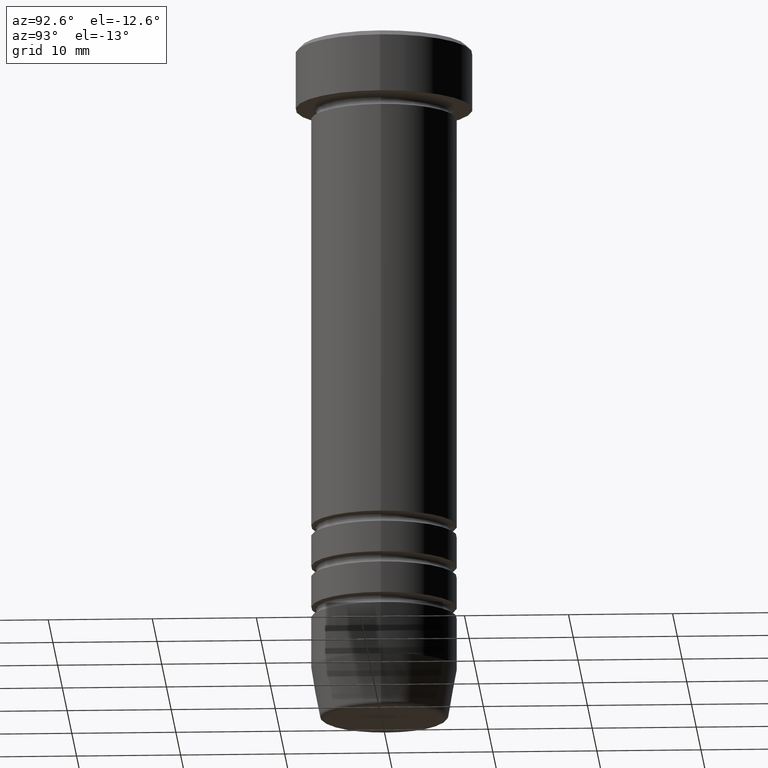
[diagram: clean part render]
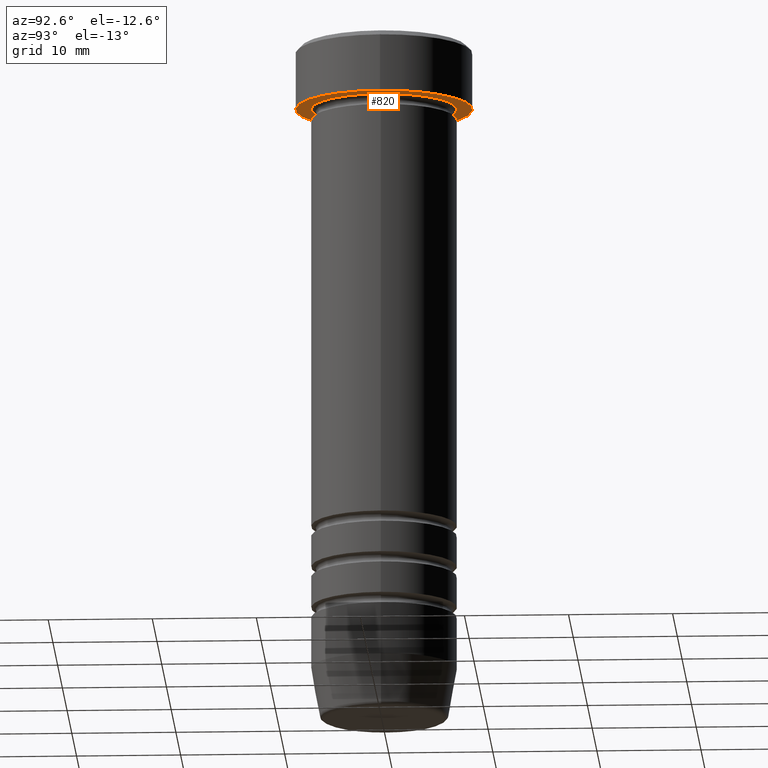
[diagram: same view with one face highlighted and labeled with its STEP entity id]
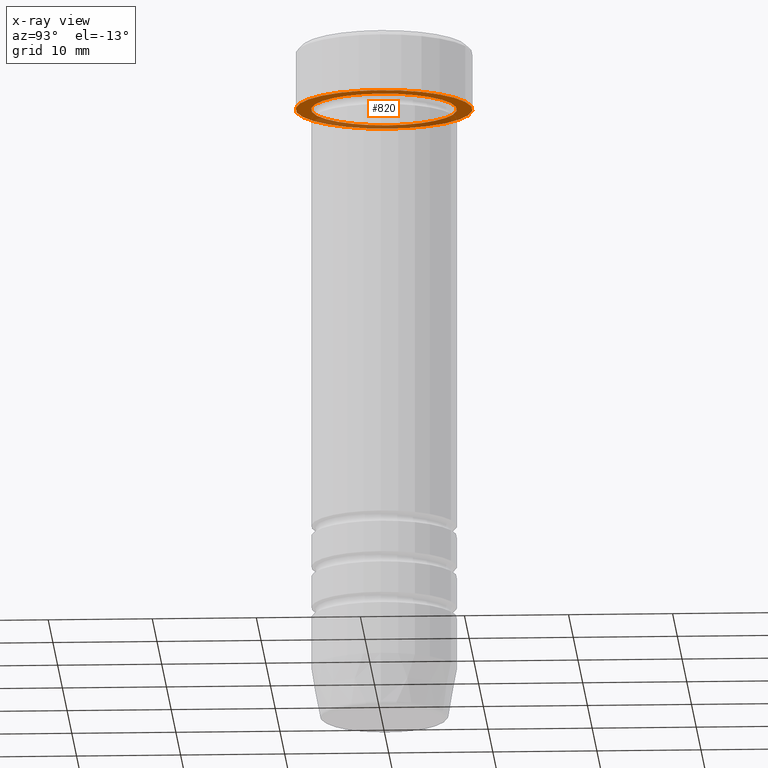
[diagram: x-ray of the same camera — body ghosted, the highlighted face saturated]
A machine part, auxiliary view. The second image highlights one B-rep face of the part: STEP entity #820.
The next image is the same camera in x-ray: the body ghosted, the highlighted face saturated — about 31% of this face is hidden behind the body in this view.
In plain terms, the highlighted planar face has unit normal (0, 0, -1).
Its self-contained STEP definition (entity closure, byte-faithful):
#4 = AXIS2_PLACEMENT_3D ( 'NONE', #617, #550, #245 ) ;
#36 = ORIENTED_EDGE ( 'NONE', *, *, #993, .F. ) ;
#55 = PLANE ( 'NONE',  #517 ) ;
#57 = ORIENTED_EDGE ( 'NONE', *, *, #767, .F. ) ;
#59 = CARTESIAN_POINT ( 'NONE',  ( 0.000000000000000000, 8.500000000000000000, -6.000000000000000000 ) ) ;
#119 = CIRCLE ( 'NONE', #4, 7.000000000000000888 ) ;
#230 = CARTESIAN_POINT ( 'NONE',  ( 0.000000000000000000, 0.000000000000000000, -6.000000000000000000 ) ) ;
#245 = DIRECTION ( 'NONE',  ( -1.000000000000000000, 0.000000000000000000, 0.000000000000000000 ) ) ;
#297 = CARTESIAN_POINT ( 'NONE',  ( 0.000000000000000000, 0.000000000000000000, -6.000000000000000000 ) ) ;
#328 = CIRCLE ( 'NONE', #477, 7.000000000000000888 ) ;
#416 = DIRECTION ( 'NONE',  ( 0.000000000000000000, 0.000000000000000000, -1.000000000000000000 ) ) ;
#435 = CARTESIAN_POINT ( 'NONE',  ( 8.500000000000000000, 0.000000000000000000, -6.000000000000000000 ) ) ;
#442 = AXIS2_PLACEMENT_3D ( 'NONE', #230, #790, #1054 ) ;
#460 = EDGE_LOOP ( 'NONE', ( #57, #36 ) ) ;
#477 = AXIS2_PLACEMENT_3D ( 'NONE', #297, #1086, #482 ) ;
#482 = DIRECTION ( 'NONE',  ( -1.000000000000000000, 0.000000000000000000, 0.000000000000000000 ) ) ;
#514 = CARTESIAN_POINT ( 'NONE',  ( -7.000000000000000888, 0.000000000000000000, -6.000000000000000000 ) ) ;
#517 = AXIS2_PLACEMENT_3D ( 'NONE', #59, #416, #1135 ) ;
#550 = DIRECTION ( 'NONE',  ( -0.000000000000000000, -0.000000000000000000, 1.000000000000000000 ) ) ;
#572 = AXIS2_PLACEMENT_3D ( 'NONE', #733, #900, #1073 ) ;
#611 = EDGE_CURVE ( 'NONE', #762, #768, #119, .T. ) ;
#617 = CARTESIAN_POINT ( 'NONE',  ( 0.000000000000000000, 0.000000000000000000, -6.000000000000000000 ) ) ;
#620 = FACE_BOUND ( 'NONE', #948, .T. ) ;
#673 = ORIENTED_EDGE ( 'NONE', *, *, #699, .T. ) ;
#697 = FACE_OUTER_BOUND ( 'NONE', #460, .T. ) ;
#699 = EDGE_CURVE ( 'NONE', #768, #762, #328, .T. ) ;
#733 = CARTESIAN_POINT ( 'NONE',  ( 0.000000000000000000, 0.000000000000000000, -6.000000000000000000 ) ) ;
#762 = VERTEX_POINT ( 'NONE', #514 ) ;
#767 = EDGE_CURVE ( 'NONE', #780, #1072, #1051, .T. ) ;
#768 = VERTEX_POINT ( 'NONE', #1113 ) ;
#780 = VERTEX_POINT ( 'NONE', #435 ) ;
#790 = DIRECTION ( 'NONE',  ( -0.000000000000000000, -0.000000000000000000, 1.000000000000000000 ) ) ;
#820 = ADVANCED_FACE ( 'NONE', ( #620, #697 ), #55, .T. ) ;
#827 = ORIENTED_EDGE ( 'NONE', *, *, #611, .T. ) ;
#900 = DIRECTION ( 'NONE',  ( -0.000000000000000000, -0.000000000000000000, 1.000000000000000000 ) ) ;
#948 = EDGE_LOOP ( 'NONE', ( #827, #673 ) ) ;
#993 = EDGE_CURVE ( 'NONE', #1072, #780, #1068, .T. ) ;
#1051 = CIRCLE ( 'NONE', #442, 8.500000000000000000 ) ;
#1054 = DIRECTION ( 'NONE',  ( 1.000000000000000000, 0.000000000000000000, 0.000000000000000000 ) ) ;
#1068 = CIRCLE ( 'NONE', #572, 8.500000000000000000 ) ;
#1072 = VERTEX_POINT ( 'NONE', #1083 ) ;
#1073 = DIRECTION ( 'NONE',  ( 1.000000000000000000, 0.000000000000000000, 0.000000000000000000 ) ) ;
#1083 = CARTESIAN_POINT ( 'NONE',  ( -8.500000000000000000, 1.040949779275250140E-15, -6.000000000000000000 ) ) ;
#1086 = DIRECTION ( 'NONE',  ( -0.000000000000000000, -0.000000000000000000, 1.000000000000000000 ) ) ;
#1113 = CARTESIAN_POINT ( 'NONE',  ( 7.000000000000000888, 8.572527594031474176E-16, -6.000000000000000000 ) ) ;
#1135 = DIRECTION ( 'NONE',  ( -1.000000000000000000, 0.000000000000000000, -0.000000000000000000 ) ) ;